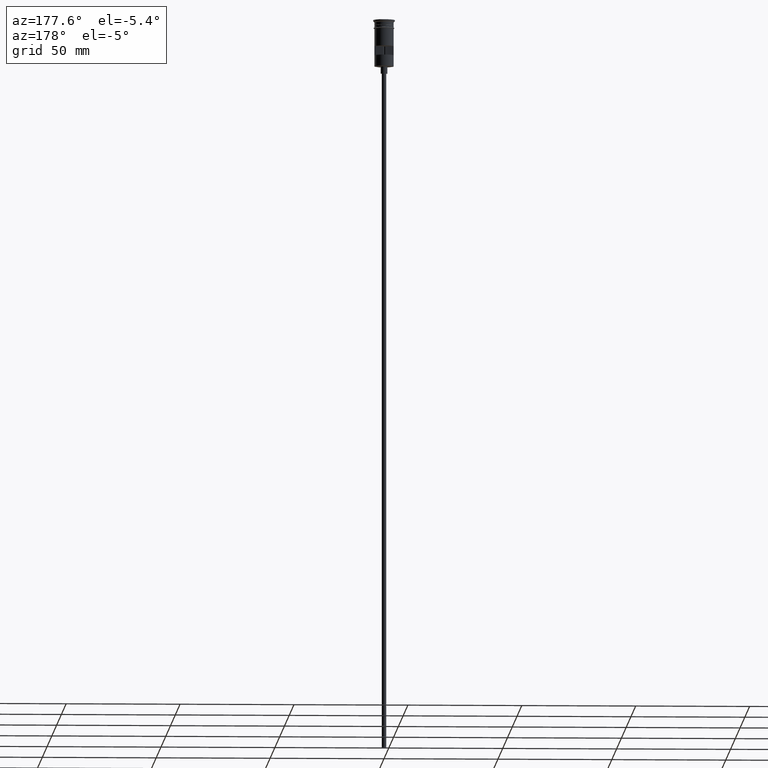
[diagram: clean part render]
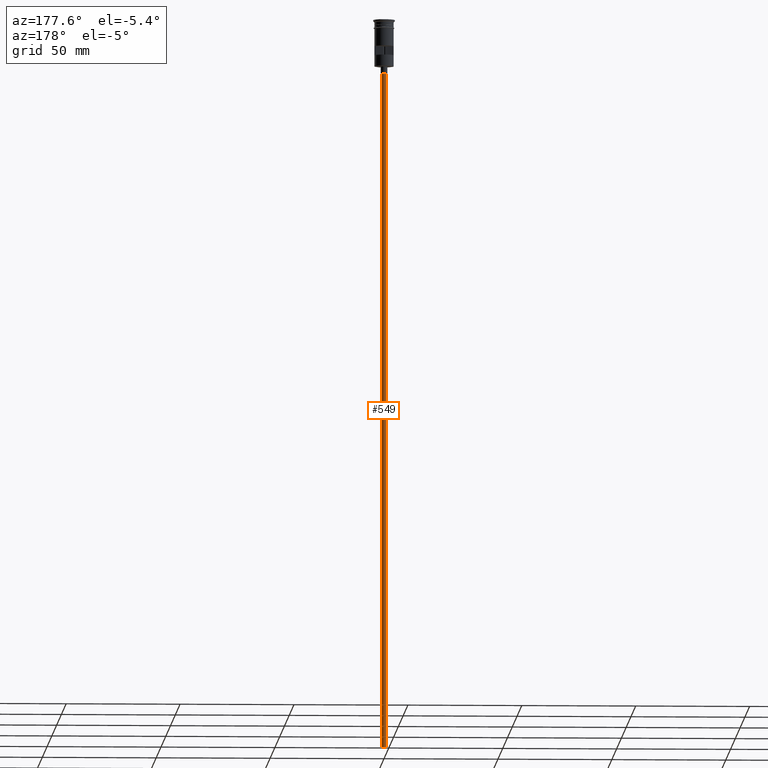
[diagram: same view with one face highlighted and labeled with its STEP entity id]
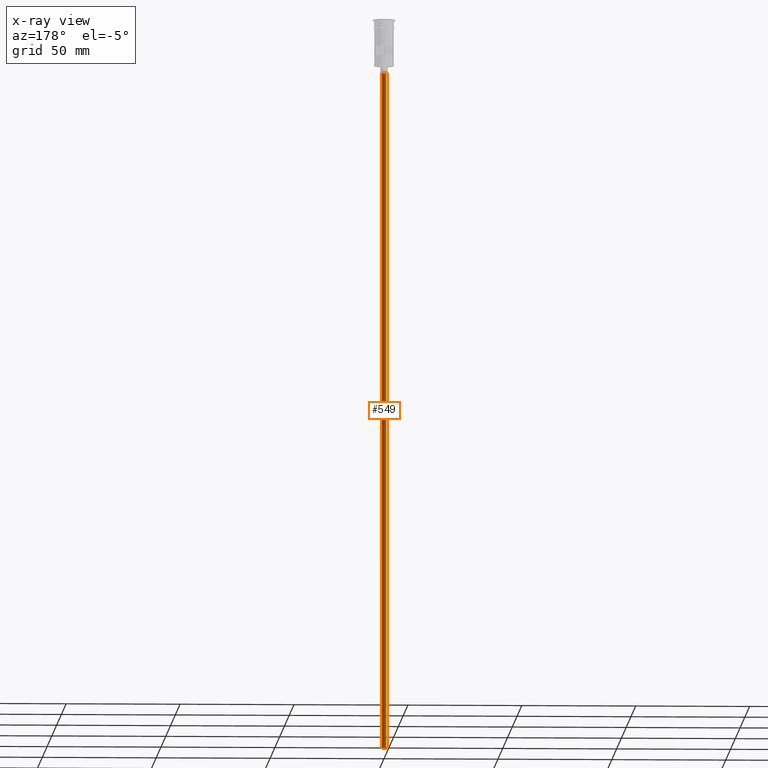
[diagram: x-ray of the same camera — body ghosted, the highlighted face saturated]
A machine part, auxiliary view. The second image highlights one B-rep face of the part: STEP entity #549.
The next image is the same camera in x-ray: the body ghosted, the highlighted face saturated — about 0% of this face is hidden behind the body in this view.
In plain terms, the highlighted cylindrical surface (edge-blend (fillet) strip) has radius 1 mm, axis along (-0, -0, 1).
Its self-contained STEP definition (entity closure, byte-faithful):
#27 = DIRECTION ( 'NONE',  ( -1.000000000000000000, 0.000000000000000000, 0.000000000000000000 ) ) ;
#37 = EDGE_CURVE ( 'NONE', #261, #1285, #1039, .T. ) ;
#76 = AXIS2_PLACEMENT_3D ( 'NONE', #510, #884, #243 ) ;
#88 = VERTEX_POINT ( 'NONE', #1467 ) ;
#89 = DIRECTION ( 'NONE',  ( -0.000000000000000000, -0.000000000000000000, 1.000000000000000000 ) ) ;
#204 = CARTESIAN_POINT ( 'NONE',  ( 0.9999999999999997780, 0.000000000000000000, -320.5000000000000000 ) ) ;
#231 = VECTOR ( 'NONE', #441, 1000.000000000000000 ) ;
#243 = DIRECTION ( 'NONE',  ( 1.000000000000000000, 0.000000000000000000, 0.000000000000000000 ) ) ;
#261 = VERTEX_POINT ( 'NONE', #289 ) ;
#289 = CARTESIAN_POINT ( 'NONE',  ( -0.9999999999999997780, 1.224646799147352961E-16, -23.49999999999999645 ) ) ;
#378 = CYLINDRICAL_SURFACE ( 'NONE', #76, 0.9999999999999997780 ) ;
#417 = ORIENTED_EDGE ( 'NONE', *, *, #427, .T. ) ;
#427 = EDGE_CURVE ( 'NONE', #88, #261, #1086, .T. ) ;
#430 = CARTESIAN_POINT ( 'NONE',  ( -0.9999999999999997780, 1.224646799147352961E-16, -320.5000000000000000 ) ) ;
#441 = DIRECTION ( 'NONE',  ( -0.000000000000000000, -0.000000000000000000, 1.000000000000000000 ) ) ;
#459 = CARTESIAN_POINT ( 'NONE',  ( 0.9999999999999997780, 0.000000000000000000, -23.49999999999999645 ) ) ;
#510 = CARTESIAN_POINT ( 'NONE',  ( 0.000000000000000000, 0.000000000000000000, -320.5000000000000000 ) ) ;
#549 = ADVANCED_FACE ( 'NONE', ( #1487 ), #378, .T. ) ;
#636 = CARTESIAN_POINT ( 'NONE',  ( 0.000000000000000000, 0.000000000000000000, -320.5000000000000000 ) ) ;
#729 = CARTESIAN_POINT ( 'NONE',  ( 0.000000000000000000, 0.000000000000000000, -23.49999999999999645 ) ) ;
#760 = DIRECTION ( 'NONE',  ( 0.000000000000000000, 0.000000000000000000, -1.000000000000000000 ) ) ;
#839 = ORIENTED_EDGE ( 'NONE', *, *, #952, .F. ) ;
#884 = DIRECTION ( 'NONE',  ( -0.000000000000000000, -0.000000000000000000, 1.000000000000000000 ) ) ;
#894 = ORIENTED_EDGE ( 'NONE', *, *, #37, .T. ) ;
#952 = EDGE_CURVE ( 'NONE', #88, #1371, #1222, .T. ) ;
#963 = LINE ( 'NONE', #204, #1156 ) ;
#977 = DIRECTION ( 'NONE',  ( -1.000000000000000000, 0.000000000000000000, 0.000000000000000000 ) ) ;
#1039 = CIRCLE ( 'NONE', #1420, 0.9999999999999997780 ) ;
#1063 = ORIENTED_EDGE ( 'NONE', *, *, #1226, .F. ) ;
#1086 = LINE ( 'NONE', #430, #231 ) ;
#1139 = DIRECTION ( 'NONE',  ( 0.000000000000000000, 0.000000000000000000, -1.000000000000000000 ) ) ;
#1156 = VECTOR ( 'NONE', #89, 1000.000000000000000 ) ;
#1222 = CIRCLE ( 'NONE', #1428, 0.9999999999999997780 ) ;
#1226 = EDGE_CURVE ( 'NONE', #1371, #1285, #963, .T. ) ;
#1285 = VERTEX_POINT ( 'NONE', #459 ) ;
#1351 = CARTESIAN_POINT ( 'NONE',  ( 0.9999999999999997780, 0.000000000000000000, -320.5000000000000000 ) ) ;
#1371 = VERTEX_POINT ( 'NONE', #1351 ) ;
#1418 = EDGE_LOOP ( 'NONE', ( #839, #417, #894, #1063 ) ) ;
#1420 = AXIS2_PLACEMENT_3D ( 'NONE', #729, #760, #977 ) ;
#1428 = AXIS2_PLACEMENT_3D ( 'NONE', #636, #1139, #27 ) ;
#1467 = CARTESIAN_POINT ( 'NONE',  ( -0.9999999999999997780, 1.224646799147352961E-16, -320.5000000000000000 ) ) ;
#1487 = FACE_OUTER_BOUND ( 'NONE', #1418, .T. ) ;